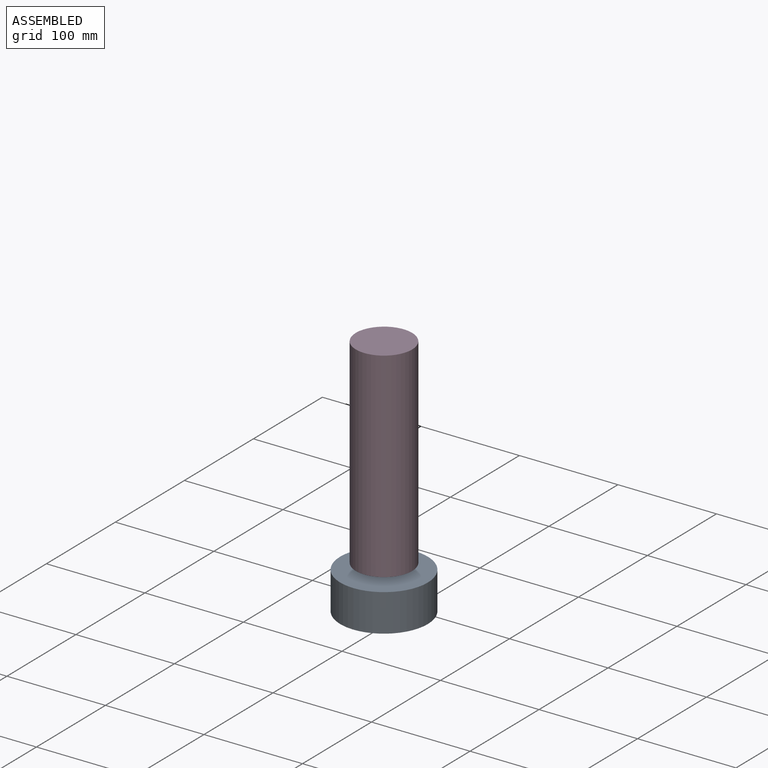
[diagram: assembled view]
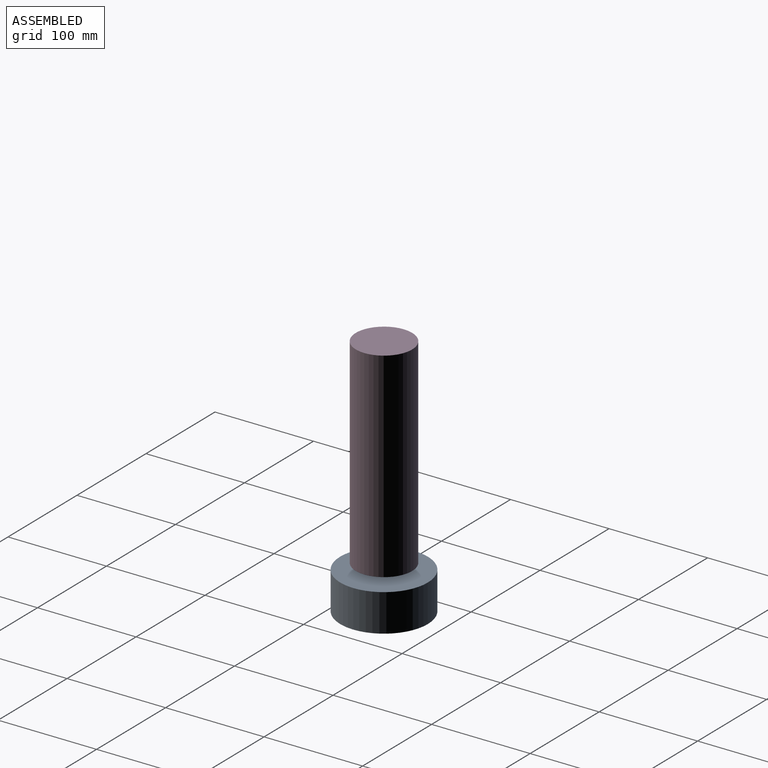
[diagram: assembled view, second angle]
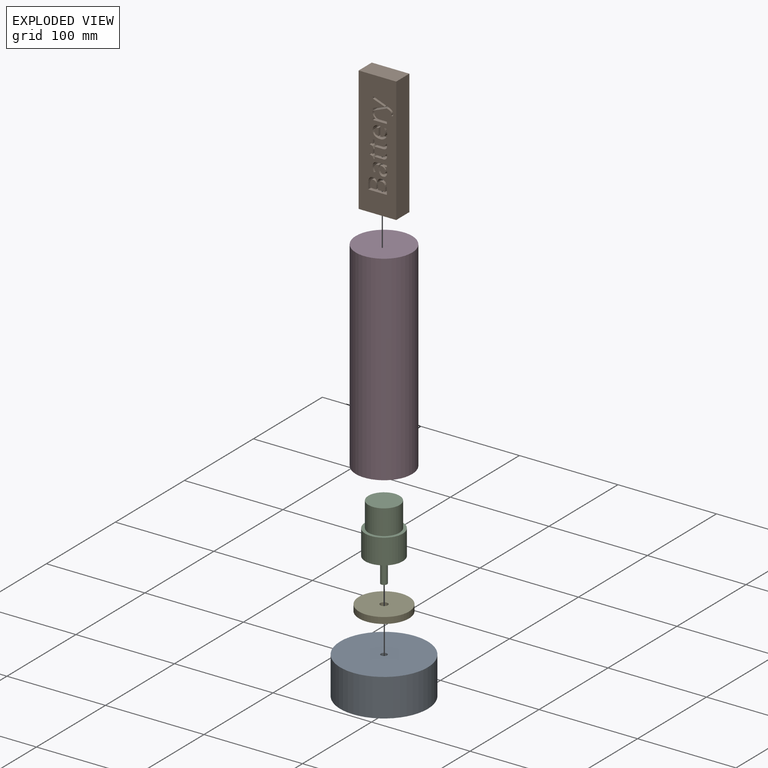
[diagram: exploded view]
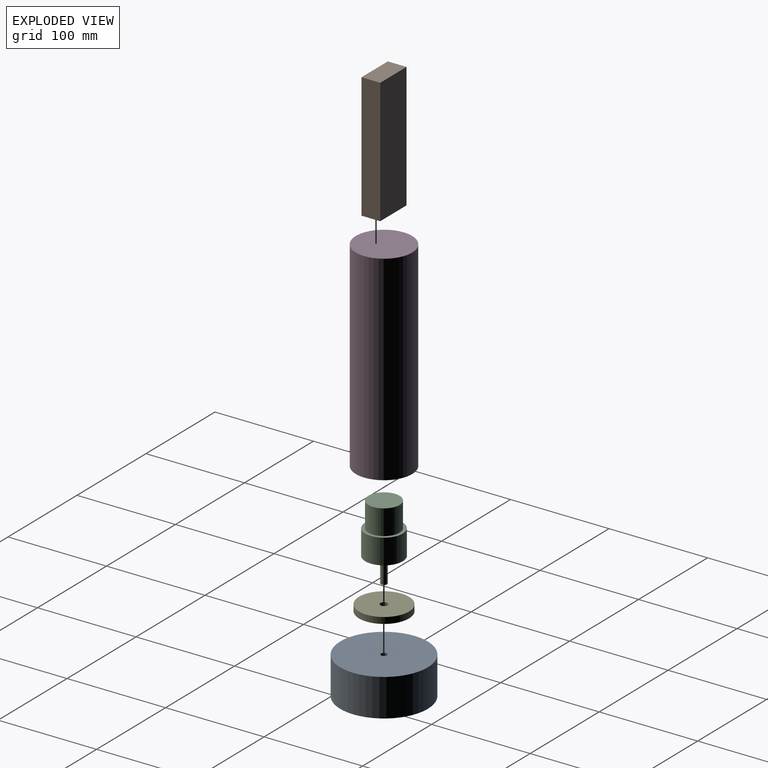
[diagram: exploded view, second angle]
ASSEMBLY  parts=5 mates=4
PART A: 6 faces, bbox 88.9x88.9x38.1 mm
  f0: plane 88.9x88.9mm, normal (0,0,1), area 6175.5mm2, adj f1,f5
  f1: cylinder r=3.17mm len=12.7mm, axis (0,0,1), area 253.4mm2, adj f0,f2
  f2: plane 38.1x38.1mm, normal (0,0,-1), area 1108.4mm2, adj f1,f3
  f3: cone r=34.92mm half-angle=32deg, axis (0,0,-1), area 5079mm2, adj f2,f4
  f4: plane 88.9x88.9mm, normal (0,0,-1), area 2375.2mm2, adj f3,f5
  f5: cylinder r=44.45mm len=88.9mm, axis (0,0,1), area 10640.9mm2, adj f0,f4
PART B: 155 faces, bbox 38.1x19x127 mm
  f0: plane 127x38.1mm, normal (0,-1,0), area 4179.5mm2, adj f1,f2,f3,f4,f6,f7,f8,f9
  f1: plane 127x19mm, normal (-1,0,0), area 2413mm2, adj f0,f2,f4,f5
  f2: plane 38.1x19mm, normal (0,0,-1), area 723.9mm2, adj f0,f1,f3,f5
  f3: plane 127x19mm, normal (1,0,0), area 2413mm2, adj f0,f2,f4,f5
  f4: plane 38.1x19mm, normal (0,0,1), area 723.9mm2, adj f0,f1,f3,f5
  f5: plane 127x38.1mm, normal (0,1,0), area 4838.7mm2, adj f1,f2,f3,f4
  f6: extruded ~6.35x1.67mm, area 11.8mm2, adj f0,f7,f24,f25
  f7: extruded ~6.35x1.96mm, area 13.3mm2, adj f0,f6,f8,f25
  f8: plane 8.33x6.35mm, normal (0,0,-1), area 52.9mm2, adj f0,f7,f9,f25
  f9: plane 6.35x4.11mm, normal (-1,0,0), area 26.1mm2, adj f0,f8,f10,f25
  f10: plane 6.35x1.67mm, normal (0,0,-1), area 10.6mm2, adj f0,f9,f11,f25
  f11: plane 6.35x4.11mm, normal (1,0,0), area 26.1mm2, adj f0,f10,f12,f25
  f12: plane 6.35x3.28mm, normal (0,0,-1), area 20.8mm2, adj f0,f11,f13,f25
  f13: plane 6.35x1.24mm, normal (1,0,0), area 7.9mm2, adj f0,f12,f14,f25
  f14: plane 6.35x3.02mm, normal (0.29,0,0.96), area 20mm2, adj f0,f13,f15,f25
  f15: plane 6.35x2.03mm, normal (0.92,0,0.4), area 14.1mm2, adj f0,f14,f16,f25
  f16: plane 6.35x1.03mm, normal (0,0,1), area 6.6mm2, adj f0,f15,f17,f25
  f17: plane 6.35x2.03mm, normal (-1,0,0), area 12.9mm2, adj f0,f16,f18,f25
  f18: plane 8.43x6.35mm, normal (0,0,1), area 53.5mm2, adj f0,f17,f19,f25
  f19: extruded ~6.35x4.33mm, area 43.5mm2, adj f0,f18,f20,f25
  f20: extruded ~6.35x1.22mm, area 7.8mm2, adj f0,f19,f21,f25
  f21: extruded ~6.35x1.03mm, area 6.8mm2, adj f0,f20,f22,f25
  f22: plane 6.35x1.64mm, normal (0,0,-1), area 10.4mm2, adj f0,f21,f23,f25
  f23: extruded ~6.35x0.84mm, area 5.4mm2, adj f0,f22,f24,f25
  f24: extruded ~6.35x1.1mm, area 7mm2, adj f0,f6,f23,f25
  f25: plane 17.7x8.38mm, normal (0,-1,0), area 51.9mm2, adj f6,f7,f8,f9,f10,f11,f12,f13
  f26: plane 18.89x6.35mm, normal (0,0,1), area 119.9mm2, adj f0,f27,f50,f51
  f27: plane 6.59x6.35mm, normal (-1,0,0), area 41.8mm2, adj f0,f26,f28,f51
  f28: extruded ~6.35x4.79mm, area 32.4mm2, adj f0,f27,f29,f51
  f29: extruded ~6.35x3.95mm, area 28.3mm2, adj f0,f28,f30,f51
  f30: extruded ~6.35x4.52mm, area 43.9mm2, adj f0,f29,f31,f51
  f31: plane 6.35x0.13mm, normal (0,0,-1), area 0.8mm2, adj f0,f30,f32,f51
  f32: extruded ~6.35x2.73mm, area 19.9mm2, adj f0,f31,f33,f51
  f33: extruded ~6.35x2.77mm, area 19mm2, adj f0,f32,f34,f51
  f34: extruded ~6.35x3.55mm, area 26.1mm2, adj f0,f33,f35,f51
  f35: extruded ~6.35x5.44mm, area 35.7mm2, adj f0,f34,f50,f51
  f36: plane 6.35x6.18mm, normal (0,0,-1), area 39.3mm2, adj f37,f48,f51,f53
  f37: plane 6.35x3.23mm, normal (-1,0,0), area 20.5mm2, adj f36,f38,f51,f53
  f38: extruded ~6.35x3.62mm, area 23.7mm2, adj f37,f39,f51,f53
  f39: extruded ~6.35x2.29mm, area 17.1mm2, adj f38,f40,f51,f53
  f40: extruded ~6.35x2.46mm, area 17.6mm2, adj f39,f41,f51,f53
  f41: extruded ~6.35x3.35mm, area 22.1mm2, adj f40,f48,f51,f53
  f42: plane 6.35x3.76mm, normal (-1,0,0), area 23.9mm2, adj f43,f49,f51,f52
  f43: extruded ~6.35x3.6mm, area 23.8mm2, adj f42,f44,f51,f52
  f44: extruded ~6.35x2.58mm, area 18.8mm2, adj f43,f45,f51,f52
  f45: extruded ~6.35x2.77mm, area 19.8mm2, adj f44,f46,f51,f52
  f46: extruded ~6.35x3.44mm, area 23mm2, adj f45,f47,f51,f52
  f47: plane 6.35x3.94mm, normal (1,0,0), area 25mm2, adj f46,f49,f51,f52
  f48: plane 6.35x3.62mm, normal (1,0,0), area 23mm2, adj f36,f41,f51,f53
  f49: plane 7.07x6.35mm, normal (0,0,-1), area 44.9mm2, adj f42,f47,f51,f52
  f50: plane 6.35x5.34mm, normal (1,0,0), area 33.9mm2, adj f0,f26,f35,f51
  f51: plane 18.89x13.09mm, normal (0,-1,0), area 121.7mm2, adj f26,f27,f28,f29,f30,f31,f32,f33
  f52: plane 8.54x7.07mm, normal (0,-1,0), area 55mm2, adj f42,f43,f44,f45,f46,f47,f49
  f53: plane 7.99x6.18mm, normal (0,-1,0), area 45.1mm2, adj f36,f37,f38,f39,f40,f41,f48
  f54: extruded ~6.35x2.45mm, area 15.6mm2, adj f0,f55,f72,f73
  f55: extruded ~6.35x2.15mm, area 14.4mm2, adj f0,f54,f56,f73
  f56: plane 6.35x1.91mm, normal (0,0,-1), area 12.2mm2, adj f0,f55,f57,f73
  f57: extruded ~6.35x4.52mm, area 29.5mm2, adj f0,f56,f58,f73
  f58: extruded ~6.35x3.37mm, area 23.6mm2, adj f0,f57,f59,f73
  f59: extruded ~6.35x3.78mm, area 25.9mm2, adj f0,f58,f60,f73
  f60: plane 9.75x6.35mm, normal (-1,0,0), area 61.9mm2, adj f0,f59,f61,f73
  f61: plane 6.35x1.36mm, normal (0,0,-1), area 8.6mm2, adj f0,f60,f62,f73
  f62: extruded ~6.35x4.62mm, area 31.7mm2, adj f0,f61,f63,f73
  f63: extruded ~6.35x4.21mm, area 29.9mm2, adj f0,f62,f64,f73
  f64: extruded ~6.35x4.53mm, area 32.6mm2, adj f0,f63,f65,f73
  f65: extruded ~6.35x5.44mm, area 36.9mm2, adj f0,f64,f66,f73
  f66: extruded ~6.35x5.31mm, area 36.5mm2, adj f0,f65,f72,f73
  f67: extruded ~6.35x2.59mm, area 18.4mm2, adj f68,f71,f73,f74
  f68: extruded ~6.35x3.1mm, area 21mm2, adj f67,f69,f73,f74
  f69: plane 7.4x6.35mm, normal (1,0,0), area 47mm2, adj f68,f70,f73,f74
  f70: extruded ~6.35x3.07mm, area 21.3mm2, adj f69,f71,f73,f74
  f71: extruded ~6.35x2.72mm, area 19.2mm2, adj f67,f70,f73,f74
  f72: extruded ~6.35x4.95mm, area 34.7mm2, adj f0,f54,f66,f73
  f73: plane 14.68x11.98mm, normal (0,-1,0), area 80mm2, adj f54,f55,f56,f57,f58,f59,f60,f61
  f74: plane 7.4x4.18mm, normal (0,-1,0), area 25mm2, adj f67,f68,f69,f70,f71
  f75: extruded ~6.35x1.67mm, area 11.8mm2, adj f0,f76,f93,f94
  f76: extruded ~6.35x1.96mm, area 13.3mm2, adj f0,f75,f77,f94
  f77: plane 8.33x6.35mm, normal (0,0,-1), area 52.9mm2, adj f0,f76,f78,f94
  f78: plane 6.35x4.11mm, normal (-1,0,0), area 26.1mm2, adj f0,f77,f79,f94
  f79: plane 6.35x1.67mm, normal (0,0,-1), area 10.6mm2, adj f0,f78,f80,f94
  f80: plane 6.35x4.11mm, normal (1,0,0), area 26.1mm2, adj f0,f79,f81,f94
  f81: plane 6.35x3.28mm, normal (0,0,-1), area 20.8mm2, adj f0,f80,f82,f94
  f82: plane 6.35x1.24mm, normal (1,0,0), area 7.9mm2, adj f0,f81,f83,f94
  f83: plane 6.35x3.02mm, normal (0.29,0,0.96), area 20mm2, adj f0,f82,f84,f94
  f84: plane 6.35x2.03mm, normal (0.92,0,0.4), area 14.1mm2, adj f0,f83,f85,f94
  f85: plane 6.35x1.03mm, normal (0,0,1), area 6.6mm2, adj f0,f84,f86,f94
  f86: plane 6.35x2.03mm, normal (-1,0,0), area 12.9mm2, adj f0,f85,f87,f94
  f87: plane 8.43x6.35mm, normal (0,0,1), area 53.5mm2, adj f0,f86,f88,f94
  f88: extruded ~6.35x4.33mm, area 43.5mm2, adj f0,f87,f89,f94
  f89: extruded ~6.35x1.22mm, area 7.8mm2, adj f0,f88,f90,f94
  f90: extruded ~6.35x1.03mm, area 6.8mm2, adj f0,f89,f91,f94
  f91: plane 6.35x1.64mm, normal (0,0,-1), area 10.4mm2, adj f0,f90,f92,f94
  f92: extruded ~6.35x0.84mm, area 5.4mm2, adj f0,f91,f93,f94
  f93: extruded ~6.35x1.1mm, area 7mm2, adj f0,f75,f92,f94
  f94: plane 17.7x8.38mm, normal (0,-1,0), area 51.9mm2, adj f75,f76,f77,f78,f79,f80,f81,f82
  f95: extruded ~6.35x2.44mm, area 16.5mm2, adj f0,f96,f107,f108
  f96: extruded ~6.35x2.13mm, area 18.3mm2, adj f0,f95,f97,f108
  f97: plane 6.35x0.1mm, normal (1,0,0), area 0.7mm2, adj f0,f96,f98,f108
  f98: plane 6.35x2.62mm, normal (0.09,0,-1), area 16.7mm2, adj f0,f97,f99,f108
  f99: plane 6.35x1.77mm, normal (1,0,0), area 11.2mm2, adj f0,f98,f100,f108
  f100: plane 14.16x6.35mm, normal (0,0,1), area 89.9mm2, adj f0,f99,f101,f108
  f101: plane 6.35x2.15mm, normal (-1,0,0), area 13.6mm2, adj f0,f100,f102,f108
  f102: plane 7.6x6.35mm, normal (0,0,-1), area 48.3mm2, adj f0,f101,f103,f108
  f103: extruded ~6.35x3.47mm, area 23.9mm2, adj f0,f102,f104,f108
  f104: extruded ~6.35x2.94mm, area 21.3mm2, adj f0,f103,f105,f108
  f105: extruded ~6.35x1.55mm, area 9.9mm2, adj f0,f104,f106,f108
  f106: plane 6.35x1.99mm, normal (-0.15,0,-0.99), area 12.8mm2, adj f0,f105,f107,f108
  f107: extruded ~6.35x1.69mm, area 10.8mm2, adj f0,f95,f106,f108
  f108: plane 14.42x8.15mm, normal (0,-1,0), area 41.8mm2, adj f95,f96,f97,f98,f99,f100,f101,f102
  f109: plane 14.24x6.35mm, normal (-0.37,0,0.93), area 97.4mm2, adj f0,f110,f124,f125
  f110: plane 6.35x2.01mm, normal (0.37,0,0.93), area 13.7mm2, adj f0,f109,f111,f125
  f111: extruded ~6.35x3.15mm, area 27.3mm2, adj f0,f110,f112,f125
  f112: extruded ~6.35x1.59mm, area 10.1mm2, adj f0,f111,f113,f125
  f113: plane 6.35x1.72mm, normal (0,0,1), area 10.9mm2, adj f0,f112,f114,f125
  f114: extruded ~6.35x1.94mm, area 12.4mm2, adj f0,f113,f115,f125
  f115: extruded ~6.35x2.96mm, area 20.3mm2, adj f0,f114,f116,f125
  f116: extruded ~6.35x3.39mm, area 25.6mm2, adj f0,f115,f117,f125
  f117: plane 16.12x6.35mm, normal (-0.35,0,-0.94), area 109.4mm2, adj f0,f116,f118,f125
  f118: plane 6.35x2.3mm, normal (1,0,0), area 14.6mm2, adj f0,f117,f119,f125
  f119: extruded ~9.81x6.35mm, area 66.2mm2, adj f0,f118,f120,f125
  f120: extruded ~6.35x2.26mm, area 15mm2, adj f0,f119,f121,f125
  f121: plane 6.35x0.1mm, normal (1,0,0), area 0.7mm2, adj f0,f120,f122,f125
  f122: extruded ~6.35x3.99mm, area 26.6mm2, adj f0,f121,f123,f125
  f123: plane 8.07x6.35mm, normal (0.36,0,-0.93), area 54.9mm2, adj f0,f122,f124,f125
  f124: plane 6.35x2.3mm, normal (1,0,0), area 14.6mm2, adj f0,f109,f123,f125
  f125: plane 20.52x13.28mm, normal (0,-1,0), area 77.8mm2, adj f109,f110,f111,f112,f113,f114,f115,f116
  f126: plane 6.35x1.59mm, normal (-1,0,0), area 10.1mm2, adj f0,f127,f152,f153
  f127: plane 9.67x6.35mm, normal (0,0,-1), area 61.4mm2, adj f0,f126,f128,f153
  f128: extruded ~6.35x3.6mm, area 24.9mm2, adj f0,f127,f129,f153
  f129: extruded ~6.35x3.75mm, area 25.4mm2, adj f0,f128,f130,f153
  f130: extruded ~6.35x2.5mm, area 16.1mm2, adj f0,f129,f131,f153
  f131: extruded ~6.35x2.29mm, area 15.7mm2, adj f0,f130,f132,f153
  f132: plane 6.35x1.64mm, normal (-0.37,0,0.93), area 11.2mm2, adj f0,f131,f133,f153
  f133: extruded ~6.35x4mm, area 26.5mm2, adj f0,f132,f134,f153
  f134: extruded ~6.35x2.29mm, area 15.9mm2, adj f0,f133,f135,f153
  f135: extruded ~6.35x2.46mm, area 16.6mm2, adj f0,f134,f136,f153
  f136: plane 6.35x0.88mm, normal (0,0,1), area 5.6mm2, adj f0,f135,f137,f153
  f137: plane 6.35x2.4mm, normal (1,0,0.03), area 15.3mm2, adj f0,f136,f138,f153
  f138: extruded ~6.86x6.35mm, area 58.5mm2, adj f0,f137,f139,f153
  f139: extruded ~6.35x3.09mm, area 21.7mm2, adj f0,f138,f140,f153
  f140: extruded ~6.35x3.3mm, area 22.6mm2, adj f0,f139,f141,f153
  f141: extruded ~6.35x2.63mm, area 17.1mm2, adj f0,f140,f142,f153
  f142: extruded ~6.35x2.11mm, area 17.8mm2, adj f0,f141,f143,f153
  f143: plane 6.35x0.1mm, normal (-1,0,0), area 0.7mm2, adj f0,f142,f152,f153
  f144: extruded ~6.35x1.97mm, area 13.4mm2, adj f145,f151,f153,f154
  f145: extruded ~6.35x1.77mm, area 12.5mm2, adj f144,f146,f153,f154
  f146: extruded ~6.35x2.19mm, area 16.4mm2, adj f145,f147,f153,f154
  f147: extruded ~6.35x3.69mm, area 24.2mm2, adj f146,f148,f153,f154
  f148: plane 6.35x2.15mm, normal (-1,0,-0.04), area 13.6mm2, adj f147,f149,f153,f154
  f149: plane 6.35x1.28mm, normal (0,0,1), area 8.1mm2, adj f148,f150,f153,f154
  f150: extruded ~6.35x3.07mm, area 21.4mm2, adj f149,f151,f153,f154
  f151: extruded ~6.35x3.15mm, area 21.7mm2, adj f144,f150,f153,f154
  f152: plane 6.35x2.02mm, normal (-0.21,0,0.98), area 13.1mm2, adj f0,f126,f143,f153
  f153: plane 14.65x11.36mm, normal (0,-1,0), area 78.5mm2, adj f126,f127,f128,f129,f130,f131,f132,f133
  f154: plane 6.96x5.45mm, normal (0,-1,0), area 30.6mm2, adj f144,f145,f146,f147,f148,f149,f150,f151
PART C: 7 faces, bbox 38.1x38.1x76.2 mm
  f0: plane 38.1x38.1mm, normal (0,0,-1), area 1108.4mm2, adj f1,f6
  f1: cylinder r=3.17mm len=25.4mm, axis (0,0,1), area 506.7mm2, adj f0,f2
  f2: plane 6.35x6.35mm, normal (0,0,-1), area 31.7mm2, adj f1
  f3: plane 31.75x31.75mm, normal (0,0,1), area 791.7mm2, adj f4
  f4: cylinder r=15.88mm len=31.75mm, axis (0,0,1), area 2533.5mm2, adj f3,f5
  f5: plane 38.1x38.1mm, normal (0,0,1), area 348.4mm2, adj f4,f6
  f6: cylinder r=19.05mm len=38.1mm, axis (0,0,1), area 3040.2mm2, adj f0,f5
PART D: 5 faces, bbox 57.2x57.2x203.2 mm
  f0: cylinder r=25.4mm len=200.03mm, axis (0,0,1), area 31922.6mm2, adj f1,f4
  f1: plane 50.8x50.8mm, normal (0,0,-1), area 2026.8mm2, adj f0
  f2: plane 57.15x57.15mm, normal (0,0,1), area 2565.2mm2, adj f3
  f3: cylinder r=28.57mm len=203.2mm, axis (0,0,1), area 36482.9mm2, adj f2,f4
  f4: plane 57.15x57.15mm, normal (0,0,-1), area 538.4mm2, adj f0,f3
PART E: 4 faces, bbox 50.8x50.8x6.4 mm
  f0: cylinder r=3.81mm len=7.62mm, axis (0,0,-1), area 152mm2, adj f2,f3
  f1: cylinder r=25.4mm len=50.8mm, axis (0,0,-1), area 1013.4mm2, adj f2,f3
  f2: plane 50.8x50.8mm, normal (0,0,1), area 1981.2mm2, adj f0,f1
  f3: plane 50.8x50.8mm, normal (0,0,-1), area 1981.2mm2, adj f0,f1
PLACE A t=(-15.76,-59.32,-49.63)mm
PLACE B t=(-15.76,-49.82,86.89)mm
PLACE C t=(-15.76,-59.32,-49.63)mm
PLACE D t=(-15.76,-59.32,-49.63)mm
PLACE E t=(-15.76,-59.32,-49.63)mm
MATE fastened E.f1 <-> C.f1  axis (0,0,1) through (-15.76,-59.32,-43.28)mm
MATE fastened E.f1 <-> D.f0  axis (0,0,-1) through (-15.76,-59.32,-49.63)mm
MATE fastened A.f1 <-> C.f1  axis (0,0,-1) through (-15.76,-59.32,-68.68)mm
MATE fastened D.f0 <-> B.f4  axis (0,0,-1) through (-15.76,-59.32,150.39)mm
